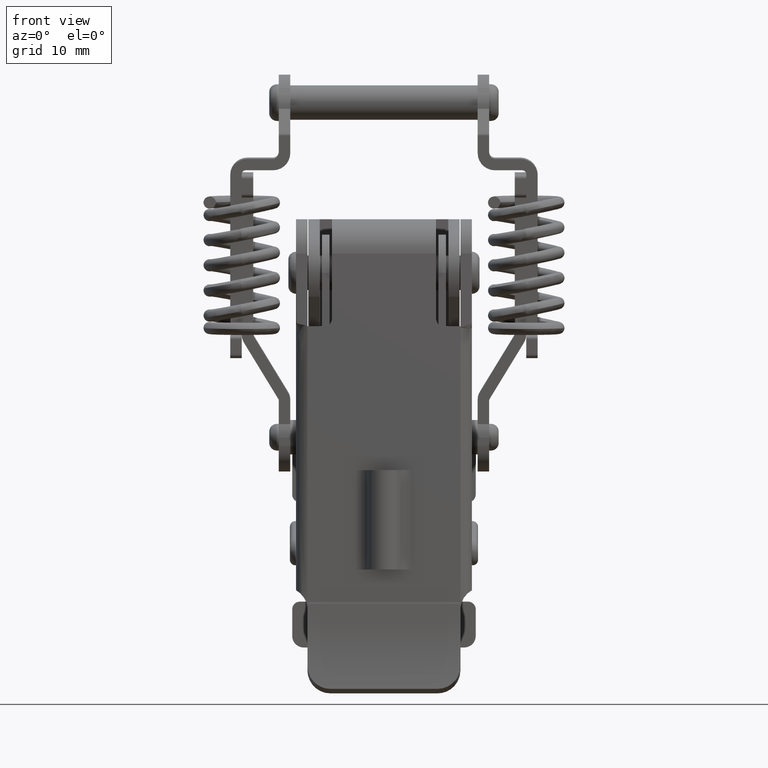
[diagram: clean part render]
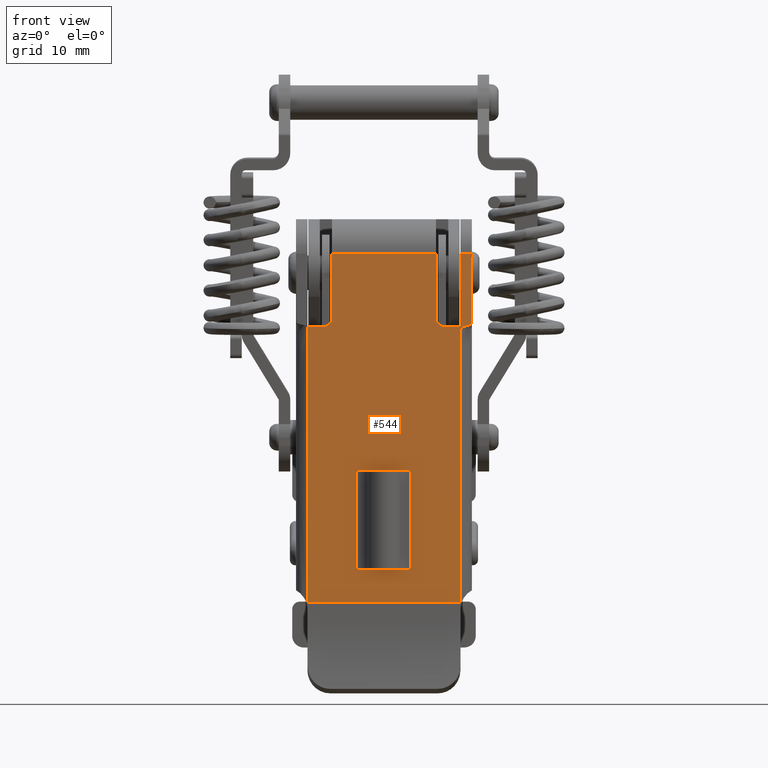
[diagram: same view with one face highlighted and labeled with its STEP entity id]
A machine part, front view. The second image highlights one B-rep face of the part: STEP entity #544.
In plain terms, the highlighted planar face has unit normal (0, 1, 0).
Its self-contained STEP definition (entity closure, byte-faithful):
#544=ADVANCED_FACE('',(#3464,#3465),#3463,.F.);
#3463=PLANE('',#6493);
#3464=FACE_OUTER_BOUND('',#6494,.T.);
#3465=FACE_BOUND('',#6495,.T.);
#6490=CARTESIAN_POINT('',(-1.21500000000E+01,0.00000000000E+00,-2.61449586832E+01));
#6491=DIRECTION('',(0.00000000000E+00,1.00000000000E+00,0.00000000000E+00));
#6492=DIRECTION('',(0.00000000000E+00,0.00000000000E+00,1.00000000000E+00));
#6493=AXIS2_PLACEMENT_3D('',#6490,#6491,#6492);
#6494=EDGE_LOOP('',(#11234,#11235,#11236,#11237,#11238,#11239,#11240,#11241,#11242,#11243,#11244,#11245,#11246,#11247));
#6495=EDGE_LOOP('',(#11248,#11249,#11250,#11251,#11252,#11253,#11254,#11255));
#11234=ORIENTED_EDGE('',*,*,#12537,.F.);
#11235=ORIENTED_EDGE('',*,*,#12719,.T.);
#11236=ORIENTED_EDGE('',*,*,#12720,.F.);
#11237=ORIENTED_EDGE('',*,*,#12721,.T.);
#11238=ORIENTED_EDGE('',*,*,#12722,.T.);
#11239=ORIENTED_EDGE('',*,*,#12723,.T.);
#11240=ORIENTED_EDGE('',*,*,#12724,.T.);
#11241=ORIENTED_EDGE('',*,*,#12691,.T.);
#11242=ORIENTED_EDGE('',*,*,#12510,.F.);
#11243=ORIENTED_EDGE('',*,*,#12514,.F.);
#11244=ORIENTED_EDGE('',*,*,#12523,.F.);
#11245=ORIENTED_EDGE('',*,*,#12632,.T.);
#11246=ORIENTED_EDGE('',*,*,#12524,.F.);
#11247=ORIENTED_EDGE('',*,*,#12532,.F.);
#11248=ORIENTED_EDGE('',*,*,#12678,.F.);
#11249=ORIENTED_EDGE('',*,*,#12653,.T.);
#11250=ORIENTED_EDGE('',*,*,#12676,.F.);
#11251=ORIENTED_EDGE('',*,*,#12711,.F.);
#11252=ORIENTED_EDGE('',*,*,#12677,.F.);
#11253=ORIENTED_EDGE('',*,*,#12673,.F.);
#11254=ORIENTED_EDGE('',*,*,#12679,.F.);
#11255=ORIENTED_EDGE('',*,*,#12717,.F.);
#12510=EDGE_CURVE('',#17041,#17042,#17043,.T.);
#12514=EDGE_CURVE('',#17069,#17041,#17070,.T.);
#12523=EDGE_CURVE('',#17124,#17069,#17131,.T.);
#12524=EDGE_CURVE('',#17137,#17138,#17139,.T.);
#12532=EDGE_CURVE('',#17193,#17137,#17194,.T.);
#12537=EDGE_CURVE('',#17220,#17193,#17227,.T.);
#12632=EDGE_CURVE('',#17124,#17138,#17869,.T.);
#12653=EDGE_CURVE('',#18004,#17997,#18005,.T.);
#12673=EDGE_CURVE('',#18135,#18120,#18142,.T.);
#12676=EDGE_CURVE('',#18032,#17997,#18160,.T.);
#12677=EDGE_CURVE('',#18120,#18107,#18166,.T.);
#12678=EDGE_CURVE('',#18004,#18053,#18172,.T.);
#12679=EDGE_CURVE('',#18094,#18135,#18178,.T.);
#12691=EDGE_CURVE('',#18253,#17042,#18254,.T.);
#12711=EDGE_CURVE('',#18107,#18032,#18389,.T.);
#12717=EDGE_CURVE('',#18053,#18094,#18426,.T.);
#12719=EDGE_CURVE('',#17220,#18438,#18439,.T.);
#12720=EDGE_CURVE('',#18445,#18438,#18446,.T.);
#12721=EDGE_CURVE('',#18445,#18322,#18452,.T.);
#12722=EDGE_CURVE('',#18322,#18458,#18459,.T.);
#12723=EDGE_CURVE('',#18458,#16916,#18465,.T.);
#12724=EDGE_CURVE('',#16916,#18253,#18471,.T.);
#16916=VERTEX_POINT('',#22730);
#17041=VERTEX_POINT('',#22816);
#17042=VERTEX_POINT('',#22817);
#17043=LINE('',#22818,#22819);
#17069=VERTEX_POINT('',#22832);
#17070=CIRCLE('',#22836,1.00000000000E+00);
#17124=VERTEX_POINT('',#22866);
#17131=LINE('',#22871,#22872);
#17137=VERTEX_POINT('',#22874);
#17138=VERTEX_POINT('',#22875);
#17139=LINE('',#22876,#22877);
#17193=VERTEX_POINT('',#22908);
#17194=CIRCLE('',#22912,1.00000000000E+00);
#17220=VERTEX_POINT('',#22925);
#17227=LINE('',#22929,#22930);
#17869=LINE('',#23334,#23335);
#17997=VERTEX_POINT('',#23406);
#18004=VERTEX_POINT('',#23411);
#18005=LINE('',#23412,#23413);
#18032=VERTEX_POINT('',#23428);
#18053=VERTEX_POINT('',#23442);
#18094=VERTEX_POINT('',#23469);
#18107=VERTEX_POINT('',#23478);
#18120=VERTEX_POINT('',#23487);
#18135=VERTEX_POINT('',#23497);
#18142=LINE('',#23502,#23503);
#18160=LINE('',#23513,#23514);
#18166=LINE('',#23516,#23517);
#18172=LINE('',#23519,#23520);
#18178=LINE('',#23522,#23523);
#18253=VERTEX_POINT('',#23563);
#18254=LINE('',#23564,#23565);
#18322=VERTEX_POINT('',#23608);
#18389=LINE('',#23648,#23649);
#18426=LINE('',#23682,#23683);
#18438=VERTEX_POINT('',#23688);
#18439=(BOUNDED_CURVE() B_SPLINE_CURVE(3,(#23689,#23690,#23691,#23692),.UNSPECIFIED.,.F.,.F.) B_SPLINE_CURVE_WITH_KNOTS((4,4),(-1.44999928750E-02,2.13717358923E-02),.UNSPECIFIED.) CURVE() GEOMETRIC_REPRESENTATION_ITEM() RATIONAL_B_SPLINE_CURVE((1.00000000000E+00,1.00000000000E+00,1.00000000000E+00,1.00000000000E+00)) REPRESENTATION_ITEM('') );
#18445=VERTEX_POINT('',#23693);
#18446=LINE('',#23694,#23695);
#18452=LINE('',#23697,#23698);
#18458=VERTEX_POINT('',#23700);
#18459=LINE('',#23701,#23702);
#18465=(BOUNDED_CURVE() B_SPLINE_CURVE(3,(#23704,#23705,#23706,#23707,#23708,#23709,#23710,#23711,#23712,#23713),.UNSPECIFIED.,.F.,.F.) B_SPLINE_CURVE_WITH_KNOTS((4,3,3,4),(-2.13717358923E-02,1.42566000803E-02,1.48850020831E-02,2.40000000000E-02),.UNSPECIFIED.) CURVE() GEOMETRIC_REPRESENTATION_ITEM() RATIONAL_B_SPLINE_CURVE((1.00000000000E+00,1.00000000000E+00,1.00000000000E+00,1.00000000000E+00,1.00000000000E+00,1.00000000000E+00,1.00000000000E+00,1.00000000000E+00,1.00000000000E+00,1.00000000000E+00)) REPRESENTATION_ITEM('') );
#18471=LINE('',#23714,#23715);
#22730=CARTESIAN_POINT('',(1.15000000000E+01,0.00000000000E+00,2.40000000000E+01));
#22816=CARTESIAN_POINT('',(7.80000000000E+00,0.00000000000E+00,1.44999928750E+01));
#22817=CARTESIAN_POINT('',(1.00000000000E+01,0.00000000000E+00,1.44999928750E+01));
#22818=CARTESIAN_POINT('',(7.80000000000E+00,0.00000000000E+00,1.44999928750E+01));
#22819=VECTOR('',#22820,2.20000000000E+00);
#22820=DIRECTION('',(1.00000000000E+00,0.00000000000E+00,0.00000000000E+00));
#22832=CARTESIAN_POINT('',(6.80000000000E+00,0.00000000000E+00,1.54999928750E+01));
#22833=CARTESIAN_POINT('',(7.80000000000E+00,0.00000000000E+00,1.54999928750E+01));
#22834=DIRECTION('',(0.00000000000E+00,-1.00000000000E+00,0.00000000000E+00));
#22835=DIRECTION('',(-0.00000000000E+00,-0.00000000000E+00,1.00000000000E+00));
#22836=AXIS2_PLACEMENT_3D('',#22833,#22834,#22835);
#22866=CARTESIAN_POINT('',(6.80000000000E+00,0.00000000000E+00,2.40000000000E+01));
#22871=CARTESIAN_POINT('',(6.80000000000E+00,0.00000000000E+00,2.40000000000E+01));
#22872=VECTOR('',#22873,8.50000712500E+00);
#22873=DIRECTION('',(0.00000000000E+00,0.00000000000E+00,-1.00000000000E+00));
#22874=CARTESIAN_POINT('',(-6.80000000000E+00,0.00000000000E+00,1.54999928750E+01));
#22875=CARTESIAN_POINT('',(-6.80000000000E+00,0.00000000000E+00,2.40000000000E+01));
#22876=CARTESIAN_POINT('',(-6.80000000000E+00,0.00000000000E+00,1.54999928750E+01));
#22877=VECTOR('',#22878,8.50000712500E+00);
#22878=DIRECTION('',(0.00000000000E+00,0.00000000000E+00,1.00000000000E+00));
#22908=CARTESIAN_POINT('',(-7.80000000000E+00,0.00000000000E+00,1.44999928750E+01));
#22909=CARTESIAN_POINT('',(-7.80000000000E+00,0.00000000000E+00,1.54999928750E+01));
#22910=DIRECTION('',(0.00000000000E+00,-1.00000000000E+00,0.00000000000E+00));
#22911=DIRECTION('',(-0.00000000000E+00,-0.00000000000E+00,1.00000000000E+00));
#22912=AXIS2_PLACEMENT_3D('',#22909,#22910,#22911);
#22925=CARTESIAN_POINT('',(-1.00000000000E+01,0.00000000000E+00,1.44999928750E+01));
#22929=CARTESIAN_POINT('',(-1.00000000000E+01,0.00000000000E+00,1.44999928750E+01));
#22930=VECTOR('',#22931,2.20000000000E+00);
#22931=DIRECTION('',(1.00000000000E+00,0.00000000000E+00,0.00000000000E+00));
#23334=CARTESIAN_POINT('',(6.80000000000E+00,0.00000000000E+00,2.40000000000E+01));
#23335=VECTOR('',#23336,1.36000000000E+01);
#23336=DIRECTION('',(-1.00000000000E+00,0.00000000000E+00,0.00000000000E+00));
#23406=CARTESIAN_POINT('',(3.54436171969E+00,0.00000000000E+00,-1.73000071250E+01));
#23411=CARTESIAN_POINT('',(3.54436171969E+00,0.00000000000E+00,-4.30000712500E+00));
#23412=CARTESIAN_POINT('',(3.54436171969E+00,0.00000000000E+00,-4.30000712500E+00));
#23413=VECTOR('',#23414,1.30000000000E+01);
#23414=DIRECTION('',(0.00000000000E+00,0.00000000000E+00,-1.00000000000E+00));
#23428=CARTESIAN_POINT('',(9.46285508336E-01,0.00000000000E+00,-1.73000071250E+01));
#23442=CARTESIAN_POINT('',(9.46285508336E-01,0.00000000000E+00,-4.30000712500E+00));
#23469=CARTESIAN_POINT('',(-9.46285508336E-01,0.00000000000E+00,-4.30000712500E+00));
#23478=CARTESIAN_POINT('',(-9.46285508336E-01,0.00000000000E+00,-1.73000071250E+01));
#23487=CARTESIAN_POINT('',(-3.54436171969E+00,0.00000000000E+00,-1.73000071250E+01));
#23497=CARTESIAN_POINT('',(-3.54436171969E+00,0.00000000000E+00,-4.30000712500E+00));
#23502=CARTESIAN_POINT('',(-3.54436171969E+00,0.00000000000E+00,-4.30000712500E+00));
#23503=VECTOR('',#23504,1.30000000000E+01);
#23504=DIRECTION('',(0.00000000000E+00,0.00000000000E+00,-1.00000000000E+00));
#23513=CARTESIAN_POINT('',(9.46285508336E-01,0.00000000000E+00,-1.73000071250E+01));
#23514=VECTOR('',#23515,2.59807621135E+00);
#23515=DIRECTION('',(1.00000000000E+00,0.00000000000E+00,0.00000000000E+00));
#23516=CARTESIAN_POINT('',(-3.54436171969E+00,0.00000000000E+00,-1.73000071250E+01));
#23517=VECTOR('',#23518,2.59807621135E+00);
#23518=DIRECTION('',(1.00000000000E+00,0.00000000000E+00,0.00000000000E+00));
#23519=CARTESIAN_POINT('',(3.54436171969E+00,0.00000000000E+00,-4.30000712500E+00));
#23520=VECTOR('',#23521,2.59807621135E+00);
#23521=DIRECTION('',(-1.00000000000E+00,0.00000000000E+00,0.00000000000E+00));
#23522=CARTESIAN_POINT('',(-9.46285508336E-01,0.00000000000E+00,-4.30000712500E+00));
#23523=VECTOR('',#23524,2.59807621135E+00);
#23524=DIRECTION('',(-1.00000000000E+00,0.00000000000E+00,0.00000000000E+00));
#23563=CARTESIAN_POINT('',(1.00000000000E+01,0.00000000000E+00,2.40000000000E+01));
#23564=CARTESIAN_POINT('',(1.00000000000E+01,0.00000000000E+00,2.40000000000E+01));
#23565=VECTOR('',#23566,9.50000712500E+00);
#23566=DIRECTION('',(0.00000000000E+00,0.00000000000E+00,-1.00000000000E+00));
#23608=CARTESIAN_POINT('',(1.00000000000E+01,0.00000000000E+00,-2.15863260756E+01));
#23648=CARTESIAN_POINT('',(-9.46285508336E-01,0.00000000000E+00,-1.73000071250E+01));
#23649=VECTOR('',#23650,1.89257101667E+00);
#23650=DIRECTION('',(1.00000000000E+00,0.00000000000E+00,0.00000000000E+00));
#23682=CARTESIAN_POINT('',(9.46285508336E-01,0.00000000000E+00,-4.30000712500E+00));
#23683=VECTOR('',#23684,1.89257101667E+00);
#23684=DIRECTION('',(-1.00000000000E+00,0.00000000000E+00,0.00000000000E+00));
#23688=CARTESIAN_POINT('',(-1.00000000000E+01,1.73472347598E-15,-2.13717358923E+01));
#23689=CARTESIAN_POINT('',(-1.00000000000E+01,0.00000000000E+00,1.44999928750E+01));
#23690=CARTESIAN_POINT('',(-1.00000000000E+01,0.00000000000E+00,2.54274995257E+00));
#23691=CARTESIAN_POINT('',(-1.00000000000E+01,0.00000000000E+00,-9.41449296986E+00));
#23692=CARTESIAN_POINT('',(-1.00000000000E+01,0.00000000000E+00,-2.13717358923E+01));
#23693=CARTESIAN_POINT('',(-1.00000000000E+01,0.00000000000E+00,-2.15863260756E+01));
#23694=CARTESIAN_POINT('',(-1.00000000000E+01,0.00000000000E+00,-2.15863260756E+01));
#23695=VECTOR('',#23696,2.14590183313E-01);
#23696=DIRECTION('',(0.00000000000E+00,0.00000000000E+00,1.00000000000E+00));
#23697=CARTESIAN_POINT('',(-1.00000000000E+01,0.00000000000E+00,-2.15863260756E+01));
#23698=VECTOR('',#23699,2.00000000000E+01);
#23699=DIRECTION('',(1.00000000000E+00,0.00000000000E+00,0.00000000000E+00));
#23700=CARTESIAN_POINT('',(1.00000000000E+01,1.73472347598E-15,-2.13717358923E+01));
#23701=CARTESIAN_POINT('',(1.00000000000E+01,0.00000000000E+00,-2.15863260756E+01));
#23702=VECTOR('',#23703,2.14590183313E-01);
#23703=DIRECTION('',(0.00000000000E+00,0.00000000000E+00,1.00000000000E+00));
#23704=CARTESIAN_POINT('',(1.00000000000E+01,0.00000000000E+00,-2.13717358923E+01));
#23705=CARTESIAN_POINT('',(1.00000000000E+01,0.00000000000E+00,-9.49562390142E+00));
#23706=CARTESIAN_POINT('',(1.00000000000E+01,0.00000000000E+00,2.38048808945E+00));
#23707=CARTESIAN_POINT('',(1.00000000000E+01,0.00000000000E+00,1.42566000803E+01));
#23708=CARTESIAN_POINT('',(1.00000000000E+01,0.00000000000E+00,1.44660674146E+01));
#23709=CARTESIAN_POINT('',(1.13977019486E+01,0.00000000000E+00,1.46755347488E+01));
#23710=CARTESIAN_POINT('',(1.14000000000E+01,0.00000000000E+00,1.48850020831E+01));
#23711=CARTESIAN_POINT('',(1.14333333333E+01,0.00000000000E+00,1.79233347221E+01));
#23712=CARTESIAN_POINT('',(1.14666666667E+01,0.00000000000E+00,2.09616673610E+01));
#23713=CARTESIAN_POINT('',(1.15000000000E+01,0.00000000000E+00,2.40000000000E+01));
#23714=CARTESIAN_POINT('',(1.15000000000E+01,0.00000000000E+00,2.40000000000E+01));
#23715=VECTOR('',#23716,1.50000000000E+00);
#23716=DIRECTION('',(-1.00000000000E+00,0.00000000000E+00,0.00000000000E+00));